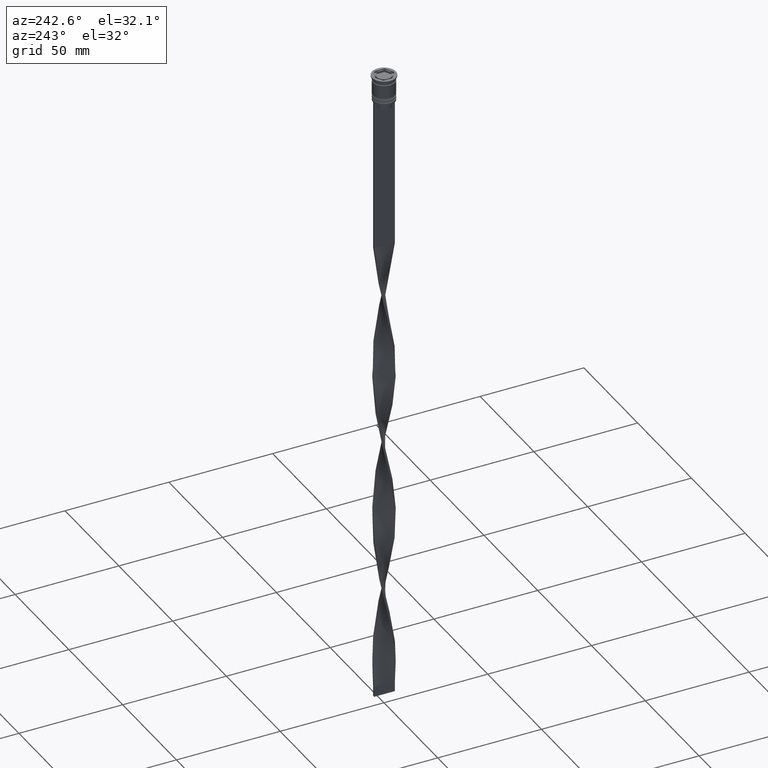
[diagram: clean part render]
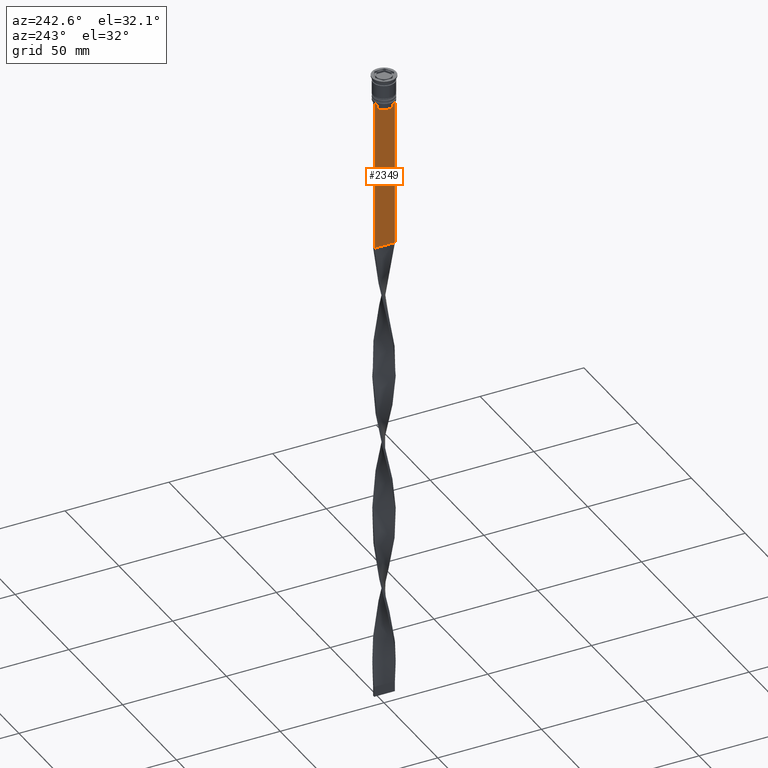
[diagram: same view with one face highlighted and labeled with its STEP entity id]
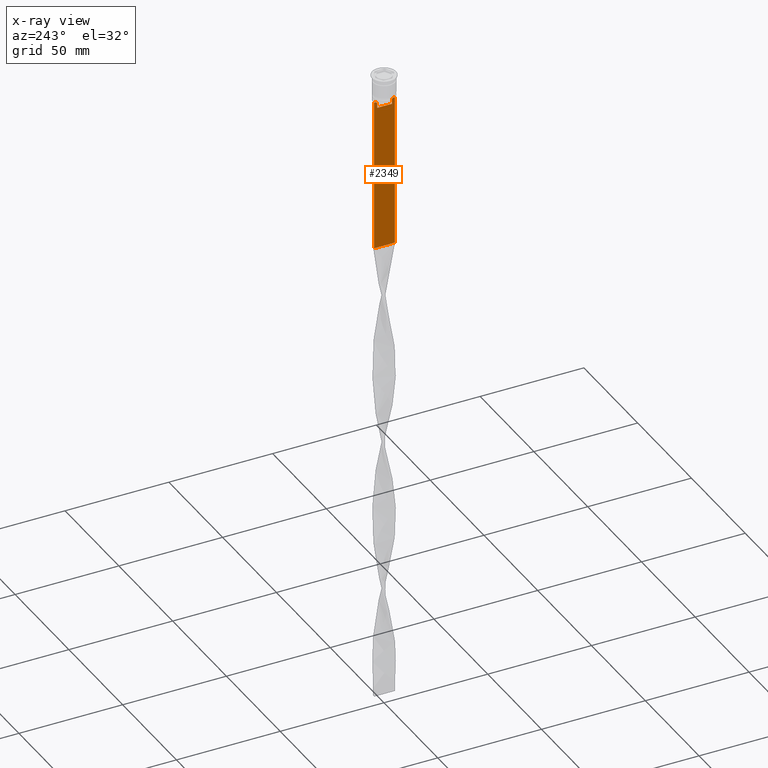
[diagram: x-ray of the same camera — body ghosted, the highlighted face saturated]
A machine part, auxiliary view. The second image highlights one B-rep face of the part: STEP entity #2349.
The next image is the same camera in x-ray: the body ghosted, the highlighted face saturated — about 0% of this face is hidden behind the body in this view.
In plain terms, the highlighted planar face has unit normal (-1, 0, 0).
Its self-contained STEP definition (entity closure, byte-faithful):
#151 = VECTOR ( 'NONE', #334, 1000.000000000000000 ) ;
#164 = CARTESIAN_POINT ( 'NONE',  ( -0.5000000000000000000, -3.615591237958188486, -15.50000000000000000 ) ) ;
#207 = CARTESIAN_POINT ( 'NONE',  ( -0.5000000000000000000, 3.951794205566887985, -12.66675159355373737 ) ) ;
#227 = ORIENTED_EDGE ( 'NONE', *, *, #2709, .F. ) ;
#334 = DIRECTION ( 'NONE',  ( 0.000000000000000000, -1.000000000000000000, 0.000000000000000000 ) ) ;
#359 = B_SPLINE_CURVE_WITH_KNOTS ( 'NONE', 3,
 ( #3316, #207, #3888, #1690 ),
 .UNSPECIFIED., .F., .F.,
 ( 4, 4 ),
 ( 0.007067514914986629433, 0.007777582239375527111 ),
 .UNSPECIFIED. ) ;
#417 = ORIENTED_EDGE ( 'NONE', *, *, #2211, .F. ) ;
#442 = CARTESIAN_POINT ( 'NONE',  ( -0.5000000000000000000, -3.951794168112525263, -12.66675163073526100 ) ) ;
#558 = AXIS2_PLACEMENT_3D ( 'NONE', #1648, #3429, #1049 ) ;
#572 = EDGE_CURVE ( 'NONE', #2716, #1308, #3689, .T. ) ;
#596 = EDGE_CURVE ( 'NONE', #1355, #2839, #3360, .T. ) ;
#802 = LINE ( 'NONE', #3523, #2523 ) ;
#850 = EDGE_CURVE ( 'NONE', #3169, #3359, #3855, .T. ) ;
#876 = DIRECTION ( 'NONE',  ( 0.000000000000000000, -1.000000000000000000, 0.000000000000000000 ) ) ;
#931 = VECTOR ( 'NONE', #3779, 1000.000000000000000 ) ;
#980 = VECTOR ( 'NONE', #3570, 1000.000000000000000 ) ;
#1004 = VERTEX_POINT ( 'NONE', #3655 ) ;
#1049 = DIRECTION ( 'NONE',  ( 0.000000000000000000, 0.000000000000000000, 1.000000000000000000 ) ) ;
#1154 = VERTEX_POINT ( 'NONE', #2493 ) ;
#1196 = ORIENTED_EDGE ( 'NONE', *, *, #3543, .F. ) ;
#1206 = B_SPLINE_CURVE_WITH_KNOTS ( 'NONE', 3,
 ( #3122, #1279, #442, #3162 ),
 .UNSPECIFIED., .F., .F.,
 ( 4, 4 ),
 ( 0.01745179617248910492, 0.01816207215777258452 ),
 .UNSPECIFIED. ) ;
#1279 = CARTESIAN_POINT ( 'NONE',  ( -0.5000000000000000000, -3.783746406711538945, -12.83343003979123687 ) ) ;
#1308 = VERTEX_POINT ( 'NONE', #2599 ) ;
#1333 = ORIENTED_EDGE ( 'NONE', *, *, #596, .F. ) ;
#1355 = VERTEX_POINT ( 'NONE', #1674 ) ;
#1396 = CARTESIAN_POINT ( 'NONE',  ( -0.5000000000000000000, -4.119769411022908834, -12.50000000000000000 ) ) ;
#1419 = EDGE_CURVE ( 'NONE', #2839, #3169, #3539, .T. ) ;
#1480 = DIRECTION ( 'NONE',  ( 0.000000000000000000, 0.000000000000000000, -1.000000000000000000 ) ) ;
#1512 = ORIENTED_EDGE ( 'NONE', *, *, #850, .F. ) ;
#1629 = EDGE_CURVE ( 'NONE', #3359, #2716, #1206, .T. ) ;
#1648 = CARTESIAN_POINT ( 'NONE',  ( -0.5000000000000000000, -4.999999999999999112, -2.450124378879110054 ) ) ;
#1658 = ORIENTED_EDGE ( 'NONE', *, *, #1629, .F. ) ;
#1674 = CARTESIAN_POINT ( 'NONE',  ( -0.5000000000000000000, 3.615591237958188042, -13.00000000000000178 ) ) ;
#1690 = CARTESIAN_POINT ( 'NONE',  ( -0.5000000000000000000, 3.615591237958188042, -13.00000000000000178 ) ) ;
#1837 = DIRECTION ( 'NONE',  ( 0.000000000000000000, 0.000000000000000000, -1.000000000000000000 ) ) ;
#1841 = VERTEX_POINT ( 'NONE', #1984 ) ;
#1862 = CARTESIAN_POINT ( 'NONE',  ( -0.5000000000000000000, 3.615591237958188486, -15.50000000000000000 ) ) ;
#1948 = PLANE ( 'NONE',  #558 ) ;
#1978 = CARTESIAN_POINT ( 'NONE',  ( -0.5000000000000000000, 3.650000000000003464, -15.50000000000000000 ) ) ;
#1984 = CARTESIAN_POINT ( 'NONE',  ( -0.5000000000000000000, 5.000000000000000888, -86.00000000000000000 ) ) ;
#2211 = EDGE_CURVE ( 'NONE', #3933, #1841, #802, .T. ) ;
#2342 = CARTESIAN_POINT ( 'NONE',  ( -0.5000000000000000000, -3.615591237958188042, 0.000000000000000000 ) ) ;
#2349 = ADVANCED_FACE ( 'NONE', ( #3449 ), #1948, .T. ) ;
#2394 = VECTOR ( 'NONE', #1837, 1000.000000000000000 ) ;
#2395 = LINE ( 'NONE', #3613, #3493 ) ;
#2424 = EDGE_CURVE ( 'NONE', #1004, #1841, #3760, .T. ) ;
#2451 = EDGE_LOOP ( 'NONE', ( #3031, #1196, #3001, #417, #227, #3156, #1658, #1512, #2831, #1333 ) ) ;
#2493 = CARTESIAN_POINT ( 'NONE',  ( -0.5000000000000000000, 4.119769411022908834, -12.50000000000000000 ) ) ;
#2523 = VECTOR ( 'NONE', #2925, 1000.000000000000000 ) ;
#2554 = DIRECTION ( 'NONE',  ( 0.000000000000000000, -1.000000000000000000, 0.000000000000000000 ) ) ;
#2587 = EDGE_CURVE ( 'NONE', #1154, #1355, #359, .T. ) ;
#2599 = CARTESIAN_POINT ( 'NONE',  ( -0.5000000000000000000, -4.999999999999999112, -12.50000000000000000 ) ) ;
#2709 = EDGE_CURVE ( 'NONE', #1308, #3933, #3840, .T. ) ;
#2716 = VERTEX_POINT ( 'NONE', #1396 ) ;
#2831 = ORIENTED_EDGE ( 'NONE', *, *, #1419, .F. ) ;
#2839 = VERTEX_POINT ( 'NONE', #1862 ) ;
#2925 = DIRECTION ( 'NONE',  ( 0.000000000000000000, 1.000000000000000000, 0.000000000000000000 ) ) ;
#3001 = ORIENTED_EDGE ( 'NONE', *, *, #2424, .T. ) ;
#3005 = CARTESIAN_POINT ( 'NONE',  ( -0.5000000000000000000, -4.999999999999999112, -2.450124378879110054 ) ) ;
#3031 = ORIENTED_EDGE ( 'NONE', *, *, #2587, .F. ) ;
#3122 = CARTESIAN_POINT ( 'NONE',  ( -0.5000000000000000000, -3.615591237958188042, -13.00000000000000178 ) ) ;
#3146 = CARTESIAN_POINT ( 'NONE',  ( -0.5000000000000000000, 5.000000000000000888, -2.450124378879110054 ) ) ;
#3156 = ORIENTED_EDGE ( 'NONE', *, *, #572, .F. ) ;
#3162 = CARTESIAN_POINT ( 'NONE',  ( -0.5000000000000000000, -4.119769411022908834, -12.50000000000000000 ) ) ;
#3169 = VERTEX_POINT ( 'NONE', #164 ) ;
#3228 = CARTESIAN_POINT ( 'NONE',  ( -0.5000000000000000000, -3.615591237958188042, -13.00000000000000178 ) ) ;
#3301 = VECTOR ( 'NONE', #1480, 1000.000000000000000 ) ;
#3312 = CARTESIAN_POINT ( 'NONE',  ( -0.5000000000000000000, -4.999999999999999112, -86.00000000000000000 ) ) ;
#3316 = CARTESIAN_POINT ( 'NONE',  ( -0.5000000000000000000, 4.119769411022908834, -12.50000000000000000 ) ) ;
#3359 = VERTEX_POINT ( 'NONE', #3228 ) ;
#3360 = LINE ( 'NONE', #3654, #2394 ) ;
#3413 = VECTOR ( 'NONE', #2554, 1000.000000000000000 ) ;
#3429 = DIRECTION ( 'NONE',  ( -1.000000000000000000, 0.000000000000000000, 0.000000000000000000 ) ) ;
#3449 = FACE_OUTER_BOUND ( 'NONE', #2451, .T. ) ;
#3493 = VECTOR ( 'NONE', #876, 1000.000000000000000 ) ;
#3523 = CARTESIAN_POINT ( 'NONE',  ( -0.5000000000000000000, -4.999999999999999112, -86.00000000000000000 ) ) ;
#3539 = LINE ( 'NONE', #1978, #3413 ) ;
#3543 = EDGE_CURVE ( 'NONE', #1004, #1154, #2395, .T. ) ;
#3570 = DIRECTION ( 'NONE',  ( -0.000000000000000000, -0.000000000000000000, 1.000000000000000000 ) ) ;
#3613 = CARTESIAN_POINT ( 'NONE',  ( -0.5000000000000000000, -4.999999999999999112, -12.50000000000000000 ) ) ;
#3654 = CARTESIAN_POINT ( 'NONE',  ( -0.5000000000000000000, 3.615591237958188042, 0.000000000000000000 ) ) ;
#3655 = CARTESIAN_POINT ( 'NONE',  ( -0.5000000000000000000, 5.000000000000000888, -12.50000000000000000 ) ) ;
#3689 = LINE ( 'NONE', #3707, #151 ) ;
#3707 = CARTESIAN_POINT ( 'NONE',  ( -0.5000000000000000000, -4.999999999999999112, -12.50000000000000000 ) ) ;
#3760 = LINE ( 'NONE', #3146, #931 ) ;
#3779 = DIRECTION ( 'NONE',  ( 0.000000000000000000, 0.000000000000000000, -1.000000000000000000 ) ) ;
#3840 = LINE ( 'NONE', #3005, #3301 ) ;
#3855 = LINE ( 'NONE', #2342, #980 ) ;
#3888 = CARTESIAN_POINT ( 'NONE',  ( -0.5000000000000000000, 3.783746449387932920, -12.83342999751715752 ) ) ;
#3933 = VERTEX_POINT ( 'NONE', #3312 ) ;